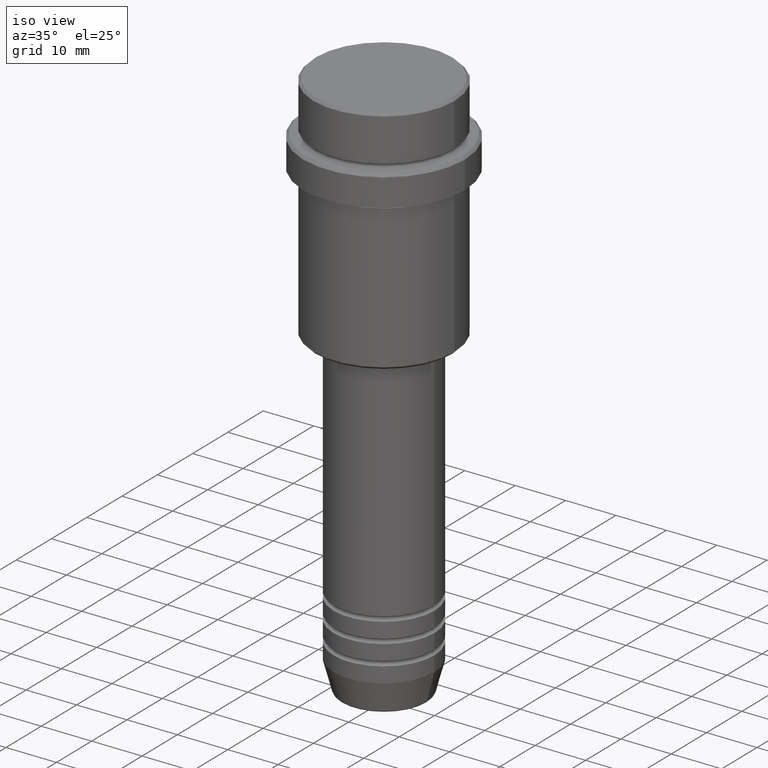
[diagram: clean part render]
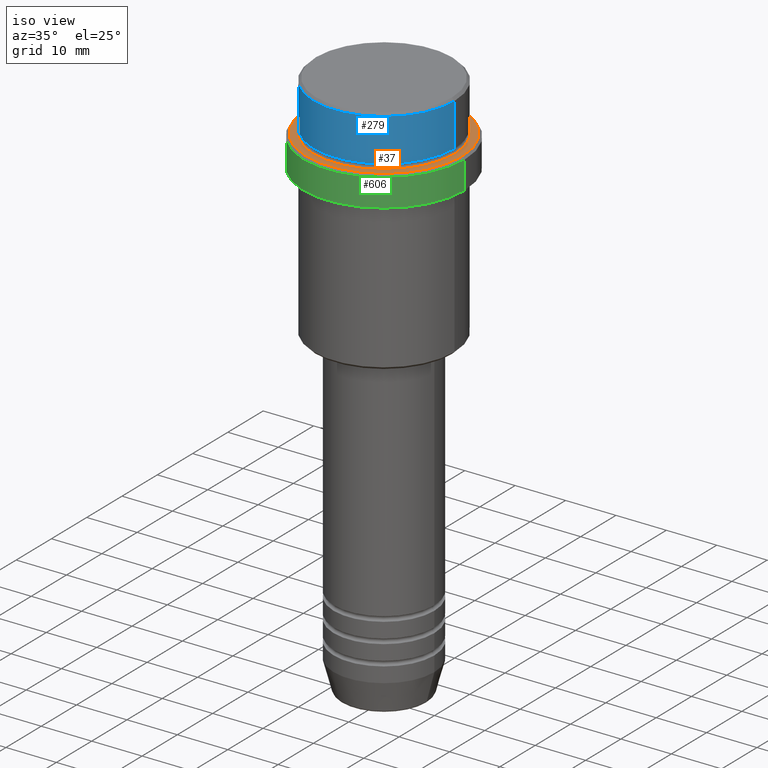
[diagram: same view with three faces highlighted in distinct colors, each labeled with its STEP entity id]
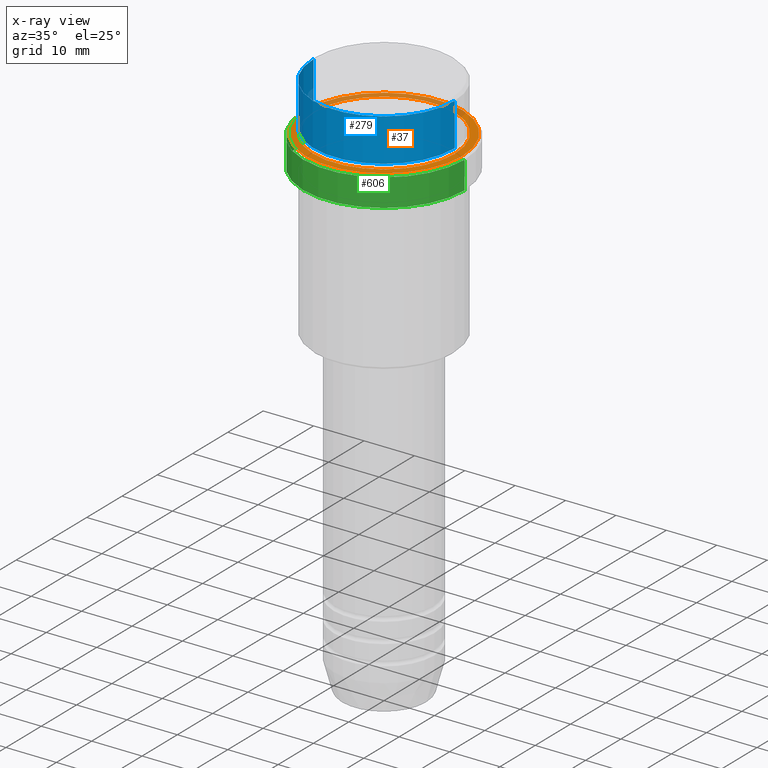
[diagram: x-ray of the same camera — body ghosted, the three highlighted faces saturated]
A machine part, iso view with three faces highlighted in distinct colors.
The next image is the same camera in x-ray (body ghosted, the three faces saturated) — at least one of them is partly hidden behind the body in this view.
Their STEP definitions:

[orange] entity #37 — the highlighted planar face has unit normal (0, -0, 1).
#37 = ADVANCED_FACE ( 'NONE', ( #72, #836 ), #290, .T. ) ;
#72 = FACE_OUTER_BOUND ( 'NONE', #953, .T. ) ;
#105 = CARTESIAN_POINT ( 'NONE',  ( -13.99999999999998579, 1.714505518806292863E-15, -10.00000000000000178 ) ) ;
#109 = DIRECTION ( 'NONE',  ( 0.000000000000000000, -0.000000000000000000, 1.000000000000000000 ) ) ;
#134 = CIRCLE ( 'NONE', #959, 13.99999999999998579 ) ;
#143 = CARTESIAN_POINT ( 'NONE',  ( 0.000000000000000000, 0.000000000000000000, -10.00000000000000178 ) ) ;
#158 = AXIS2_PLACEMENT_3D ( 'NONE', #324, #1071, #309 ) ;
#171 = VERTEX_POINT ( 'NONE', #612 ) ;
#188 = ORIENTED_EDGE ( 'NONE', *, *, #672, .T. ) ;
#286 = VERTEX_POINT ( 'NONE', #105 ) ;
#290 = PLANE ( 'NONE',  #1239 ) ;
#309 = DIRECTION ( 'NONE',  ( 1.000000000000000000, 0.000000000000000000, 0.000000000000000000 ) ) ;
#324 = CARTESIAN_POINT ( 'NONE',  ( 0.000000000000000000, 0.000000000000000000, -10.00000000000000178 ) ) ;
#333 = DIRECTION ( 'NONE',  ( 1.000000000000000000, 0.000000000000000000, 0.000000000000000000 ) ) ;
#375 = AXIS2_PLACEMENT_3D ( 'NONE', #143, #590, #384 ) ;
#384 = DIRECTION ( 'NONE',  ( 1.000000000000000000, 0.000000000000000000, 0.000000000000000000 ) ) ;
#387 = CARTESIAN_POINT ( 'NONE',  ( 0.000000000000000000, 13.49999999999998579, -10.00000000000000178 ) ) ;
#417 = EDGE_CURVE ( 'NONE', #1393, #286, #776, .T. ) ;
#420 = CIRCLE ( 'NONE', #375, 15.49999999999998579 ) ;
#467 = CIRCLE ( 'NONE', #696, 15.49999999999998579 ) ;
#519 = EDGE_CURVE ( 'NONE', #286, #1393, #134, .T. ) ;
#541 = CARTESIAN_POINT ( 'NONE',  ( 15.49999999999998579, 1.928818708657080161E-15, -10.00000000000000178 ) ) ;
#554 = ORIENTED_EDGE ( 'NONE', *, *, #519, .T. ) ;
#559 = ORIENTED_EDGE ( 'NONE', *, *, #1308, .T. ) ;
#590 = DIRECTION ( 'NONE',  ( -0.000000000000000000, -0.000000000000000000, 1.000000000000000000 ) ) ;
#594 = DIRECTION ( 'NONE',  ( 1.000000000000000000, 0.000000000000000000, 0.000000000000000000 ) ) ;
#612 = CARTESIAN_POINT ( 'NONE',  ( -15.49999999999998579, 0.000000000000000000, -10.00000000000000178 ) ) ;
#672 = EDGE_CURVE ( 'NONE', #171, #805, #420, .T. ) ;
#696 = AXIS2_PLACEMENT_3D ( 'NONE', #1025, #1020, #778 ) ;
#774 = ORIENTED_EDGE ( 'NONE', *, *, #417, .T. ) ;
#776 = CIRCLE ( 'NONE', #158, 13.99999999999998579 ) ;
#778 = DIRECTION ( 'NONE',  ( 1.000000000000000000, 0.000000000000000000, 0.000000000000000000 ) ) ;
#805 = VERTEX_POINT ( 'NONE', #541 ) ;
#836 = FACE_BOUND ( 'NONE', #1132, .T. ) ;
#953 = EDGE_LOOP ( 'NONE', ( #188, #559 ) ) ;
#959 = AXIS2_PLACEMENT_3D ( 'NONE', #1310, #1315, #333 ) ;
#975 = CARTESIAN_POINT ( 'NONE',  ( 13.99999999999998579, 0.000000000000000000, -10.00000000000000178 ) ) ;
#1020 = DIRECTION ( 'NONE',  ( -0.000000000000000000, -0.000000000000000000, 1.000000000000000000 ) ) ;
#1025 = CARTESIAN_POINT ( 'NONE',  ( 0.000000000000000000, 0.000000000000000000, -10.00000000000000178 ) ) ;
#1071 = DIRECTION ( 'NONE',  ( 0.000000000000000000, 0.000000000000000000, -1.000000000000000000 ) ) ;
#1132 = EDGE_LOOP ( 'NONE', ( #774, #554 ) ) ;
#1239 = AXIS2_PLACEMENT_3D ( 'NONE', #387, #109, #594 ) ;
#1308 = EDGE_CURVE ( 'NONE', #805, #171, #467, .T. ) ;
#1310 = CARTESIAN_POINT ( 'NONE',  ( 0.000000000000000000, 0.000000000000000000, -10.00000000000000178 ) ) ;
#1315 = DIRECTION ( 'NONE',  ( 0.000000000000000000, 0.000000000000000000, -1.000000000000000000 ) ) ;
#1393 = VERTEX_POINT ( 'NONE', #975 ) ;

[blue] entity #279 — the highlighted cylindrical surface (partial cylindrical patch) has radius 14 mm, axis along (-0, -0, 1).
#7 = EDGE_CURVE ( 'NONE', #25, #114, #130, .T. ) ;
#25 = VERTEX_POINT ( 'NONE', #1361 ) ;
#39 = DIRECTION ( 'NONE',  ( 0.000000000000000000, 0.000000000000000000, -1.000000000000000000 ) ) ;
#52 = FACE_OUTER_BOUND ( 'NONE', #78, .T. ) ;
#66 = CIRCLE ( 'NONE', #1347, 13.99999999999999112 ) ;
#78 = EDGE_LOOP ( 'NONE', ( #706, #1371, #364, #431 ) ) ;
#98 = CYLINDRICAL_SURFACE ( 'NONE', #1320, 13.99999999999999467 ) ;
#114 = VERTEX_POINT ( 'NONE', #998 ) ;
#130 = CIRCLE ( 'NONE', #955, 13.99999999999999467 ) ;
#202 = DIRECTION ( 'NONE',  ( -0.000000000000000000, -0.000000000000000000, 1.000000000000000000 ) ) ;
#210 = CARTESIAN_POINT ( 'NONE',  ( 0.000000000000000000, 0.000000000000000000, -8.999999999999998224 ) ) ;
#272 = CARTESIAN_POINT ( 'NONE',  ( 13.99999999999999467, 0.000000000000000000, 0.000000000000000000 ) ) ;
#273 = LINE ( 'NONE', #605, #895 ) ;
#279 = ADVANCED_FACE ( 'NONE', ( #52 ), #98, .T. ) ;
#285 = DIRECTION ( 'NONE',  ( -0.000000000000000000, -0.000000000000000000, 1.000000000000000000 ) ) ;
#347 = CARTESIAN_POINT ( 'NONE',  ( 13.99999999999999112, 0.000000000000000000, -8.999999999999998224 ) ) ;
#364 = ORIENTED_EDGE ( 'NONE', *, *, #1068, .T. ) ;
#404 = EDGE_CURVE ( 'NONE', #969, #1106, #66, .T. ) ;
#431 = ORIENTED_EDGE ( 'NONE', *, *, #7, .T. ) ;
#487 = DIRECTION ( 'NONE',  ( 1.000000000000000000, 0.000000000000000000, 0.000000000000000000 ) ) ;
#577 = EDGE_CURVE ( 'NONE', #969, #114, #273, .T. ) ;
#588 = CARTESIAN_POINT ( 'NONE',  ( 0.000000000000000000, 0.000000000000000000, -0.5000000000000038858 ) ) ;
#605 = CARTESIAN_POINT ( 'NONE',  ( -13.99999999999999467, 1.714505518806294046E-15, 0.000000000000000000 ) ) ;
#706 = ORIENTED_EDGE ( 'NONE', *, *, #577, .F. ) ;
#711 = DIRECTION ( 'NONE',  ( -0.000000000000000000, -0.000000000000000000, 1.000000000000000000 ) ) ;
#750 = CARTESIAN_POINT ( 'NONE',  ( 0.000000000000000000, 0.000000000000000000, 0.000000000000000000 ) ) ;
#817 = LINE ( 'NONE', #272, #960 ) ;
#881 = CARTESIAN_POINT ( 'NONE',  ( -13.99999999999999112, 1.714505518806293849E-15, -8.999999999999998224 ) ) ;
#895 = VECTOR ( 'NONE', #285, 1000.000000000000000 ) ;
#954 = DIRECTION ( 'NONE',  ( -0.000000000000000000, -0.000000000000000000, 1.000000000000000000 ) ) ;
#955 = AXIS2_PLACEMENT_3D ( 'NONE', #588, #39, #487 ) ;
#960 = VECTOR ( 'NONE', #711, 1000.000000000000000 ) ;
#969 = VERTEX_POINT ( 'NONE', #881 ) ;
#998 = CARTESIAN_POINT ( 'NONE',  ( -13.99999999999999467, 1.714505518806294046E-15, -0.5000000000000038858 ) ) ;
#1068 = EDGE_CURVE ( 'NONE', #1106, #25, #817, .T. ) ;
#1106 = VERTEX_POINT ( 'NONE', #347 ) ;
#1178 = DIRECTION ( 'NONE',  ( 1.000000000000000000, 0.000000000000000000, 0.000000000000000000 ) ) ;
#1320 = AXIS2_PLACEMENT_3D ( 'NONE', #750, #202, #1178 ) ;
#1347 = AXIS2_PLACEMENT_3D ( 'NONE', #210, #954, #1414 ) ;
#1361 = CARTESIAN_POINT ( 'NONE',  ( 13.99999999999999467, 0.000000000000000000, -0.5000000000000038858 ) ) ;
#1371 = ORIENTED_EDGE ( 'NONE', *, *, #404, .T. ) ;
#1414 = DIRECTION ( 'NONE',  ( 1.000000000000000000, 0.000000000000000000, 0.000000000000000000 ) ) ;

[green] entity #606 — the highlighted cylindrical surface (partial cylindrical patch) has radius 16 mm, axis along (-0, -0, 1).
#12 = VERTEX_POINT ( 'NONE', #1313 ) ;
#32 = DIRECTION ( 'NONE',  ( 1.000000000000000000, 0.000000000000000000, 0.000000000000000000 ) ) ;
#53 = CARTESIAN_POINT ( 'NONE',  ( -15.99999999999999289, 1.959434878635764343E-15, -10.50000000000000888 ) ) ;
#61 = CYLINDRICAL_SURFACE ( 'NONE', #827, 15.99999999999999289 ) ;
#81 = ORIENTED_EDGE ( 'NONE', *, *, #1144, .F. ) ;
#95 = CIRCLE ( 'NONE', #325, 15.99999999999999289 ) ;
#170 = FACE_OUTER_BOUND ( 'NONE', #913, .T. ) ;
#179 = VERTEX_POINT ( 'NONE', #1386 ) ;
#213 = CIRCLE ( 'NONE', #515, 15.99999999999999289 ) ;
#325 = AXIS2_PLACEMENT_3D ( 'NONE', #352, #668, #32 ) ;
#352 = CARTESIAN_POINT ( 'NONE',  ( 0.000000000000000000, 0.000000000000000000, -10.50000000000000888 ) ) ;
#415 = ORIENTED_EDGE ( 'NONE', *, *, #1138, .T. ) ;
#433 = DIRECTION ( 'NONE',  ( 1.000000000000000000, 0.000000000000000000, 0.000000000000000000 ) ) ;
#513 = VECTOR ( 'NONE', #570, 1000.000000000000000 ) ;
#515 = AXIS2_PLACEMENT_3D ( 'NONE', #1306, #860, #433 ) ;
#570 = DIRECTION ( 'NONE',  ( -0.000000000000000000, -0.000000000000000000, 1.000000000000000000 ) ) ;
#578 = CARTESIAN_POINT ( 'NONE',  ( -15.99999999999999289, 1.959434878635764343E-15, 0.000000000000000000 ) ) ;
#606 = ADVANCED_FACE ( 'NONE', ( #170 ), #61, .T. ) ;
#609 = CARTESIAN_POINT ( 'NONE',  ( -15.99999999999999289, 1.959434878635764343E-15, -16.00000000000000000 ) ) ;
#628 = LINE ( 'NONE', #578, #1172 ) ;
#668 = DIRECTION ( 'NONE',  ( 0.000000000000000000, 0.000000000000000000, -1.000000000000000000 ) ) ;
#725 = ORIENTED_EDGE ( 'NONE', *, *, #1162, .T. ) ;
#743 = LINE ( 'NONE', #1411, #513 ) ;
#789 = VERTEX_POINT ( 'NONE', #53 ) ;
#827 = AXIS2_PLACEMENT_3D ( 'NONE', #1391, #1405, #1070 ) ;
#860 = DIRECTION ( 'NONE',  ( -0.000000000000000000, -0.000000000000000000, 1.000000000000000000 ) ) ;
#887 = EDGE_CURVE ( 'NONE', #179, #12, #743, .T. ) ;
#913 = EDGE_LOOP ( 'NONE', ( #81, #415, #1253, #725 ) ) ;
#946 = VERTEX_POINT ( 'NONE', #609 ) ;
#1070 = DIRECTION ( 'NONE',  ( 1.000000000000000000, 0.000000000000000000, 0.000000000000000000 ) ) ;
#1138 = EDGE_CURVE ( 'NONE', #946, #179, #213, .T. ) ;
#1144 = EDGE_CURVE ( 'NONE', #946, #789, #628, .T. ) ;
#1162 = EDGE_CURVE ( 'NONE', #12, #789, #95, .T. ) ;
#1172 = VECTOR ( 'NONE', #1205, 1000.000000000000000 ) ;
#1205 = DIRECTION ( 'NONE',  ( -0.000000000000000000, -0.000000000000000000, 1.000000000000000000 ) ) ;
#1253 = ORIENTED_EDGE ( 'NONE', *, *, #887, .T. ) ;
#1306 = CARTESIAN_POINT ( 'NONE',  ( 0.000000000000000000, 0.000000000000000000, -16.00000000000000000 ) ) ;
#1313 = CARTESIAN_POINT ( 'NONE',  ( 15.99999999999999289, 0.000000000000000000, -10.50000000000000888 ) ) ;
#1386 = CARTESIAN_POINT ( 'NONE',  ( 15.99999999999999289, 0.000000000000000000, -16.00000000000000000 ) ) ;
#1391 = CARTESIAN_POINT ( 'NONE',  ( 0.000000000000000000, 0.000000000000000000, 0.000000000000000000 ) ) ;
#1405 = DIRECTION ( 'NONE',  ( -0.000000000000000000, -0.000000000000000000, 1.000000000000000000 ) ) ;
#1411 = CARTESIAN_POINT ( 'NONE',  ( 15.99999999999999289, 0.000000000000000000, 0.000000000000000000 ) ) ;